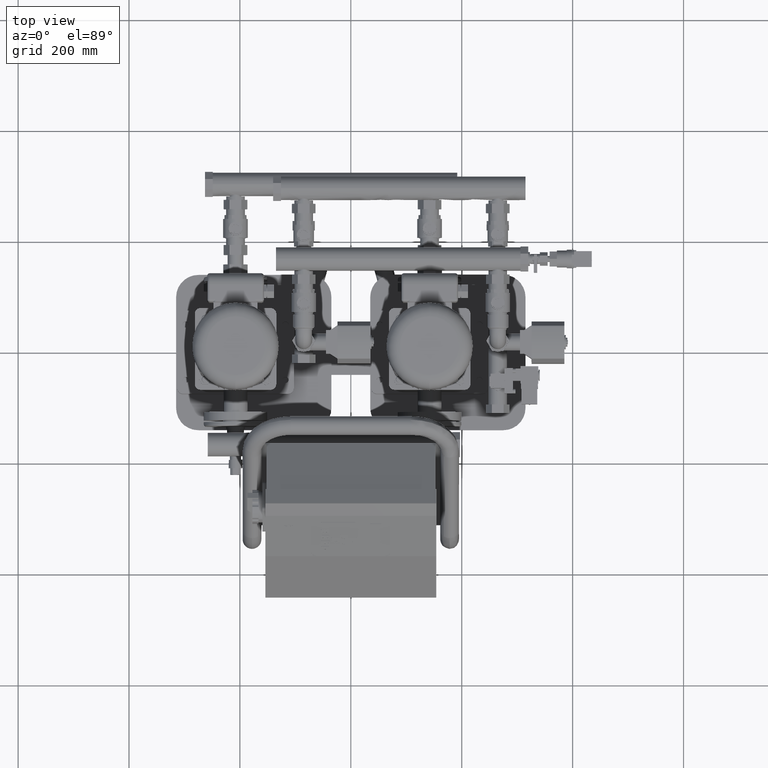
[diagram: clean part render]
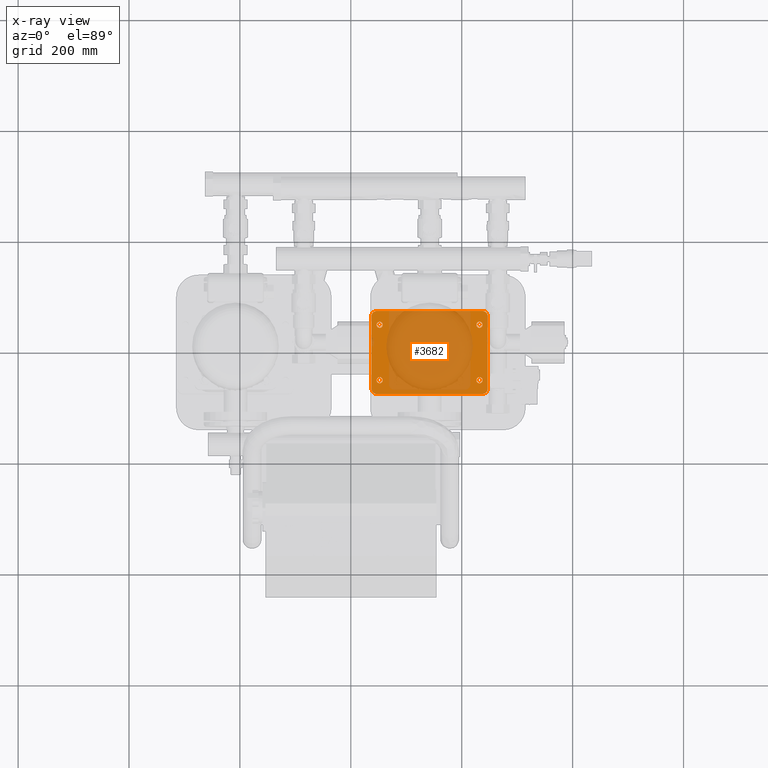
[diagram: x-ray — body ghosted, one internal face saturated and labeled with its STEP entity id]
A machine part, top view, then the same camera in x-ray: the body is ghosted and one INTERNAL B-rep face — a face not visible from any outside direction — is saturated and labeled: STEP entity #3682.
In plain terms, the highlighted planar face has unit normal (0, 0, 1).
Its self-contained STEP definition (entity closure, byte-faithful):
#1558=CARTESIAN_POINT('',(52.000000000000014,55.500000000000014,52.999999999999993));
#1559=VERTEX_POINT('',#1558);
#1568=CARTESIAN_POINT('',(52.000000000000014,44.500000000000014,52.999999999999993));
#1569=VERTEX_POINT('',#1568);
#1570=CARTESIAN_POINT('',(52.000000000000014,50.000000000000014,52.999999999999993));
#1571=DIRECTION('',(0.0,0.0,1.0));
#1572=DIRECTION('',(0.0,1.0,0.0));
#1573=AXIS2_PLACEMENT_3D('',#1570,#1571,#1572);
#1574=CIRCLE('',#1573,5.500000000000000);
#1575=EDGE_CURVE('',#1569,#1559,#1574,.T.);
#1600=CARTESIAN_POINT('',(232.0,55.499999999999993,52.999999999999993));
#1601=VERTEX_POINT('',#1600);
#1610=CARTESIAN_POINT('',(232.0,44.500000000000000,52.999999999999993));
#1611=VERTEX_POINT('',#1610);
#1612=CARTESIAN_POINT('',(232.0,49.999999999999993,52.999999999999993));
#1613=DIRECTION('',(0.0,0.0,1.0));
#1614=DIRECTION('',(0.0,1.0,0.0));
#1615=AXIS2_PLACEMENT_3D('',#1612,#1613,#1614);
#1616=CIRCLE('',#1615,5.500000000000000);
#1617=EDGE_CURVE('',#1611,#1601,#1616,.T.);
#1642=CARTESIAN_POINT('',(232.0,-44.500000000000007,52.999999999999993));
#1643=VERTEX_POINT('',#1642);
#1652=CARTESIAN_POINT('',(232.0,-55.500000000000000,52.999999999999993));
#1653=VERTEX_POINT('',#1652);
#1654=CARTESIAN_POINT('',(232.0,-50.000000000000007,52.999999999999993));
#1655=DIRECTION('',(0.0,0.0,1.0));
#1656=DIRECTION('',(0.0,1.0,0.0));
#1657=AXIS2_PLACEMENT_3D('',#1654,#1655,#1656);
#1658=CIRCLE('',#1657,5.500000000000000);
#1659=EDGE_CURVE('',#1653,#1643,#1658,.T.);
#1684=CARTESIAN_POINT('',(52.0,-44.499999999999986,52.999999999999993));
#1685=VERTEX_POINT('',#1684);
#1694=CARTESIAN_POINT('',(52.0,-55.499999999999986,52.999999999999993));
#1695=VERTEX_POINT('',#1694);
#1696=CARTESIAN_POINT('',(52.0,-49.999999999999986,52.999999999999993));
#1697=DIRECTION('',(0.0,0.0,1.0));
#1698=DIRECTION('',(0.0,1.0,0.0));
#1699=AXIS2_PLACEMENT_3D('',#1696,#1697,#1698);
#1700=CIRCLE('',#1699,5.500000000000000);
#1701=EDGE_CURVE('',#1695,#1685,#1700,.T.);
#3313=CARTESIAN_POINT('',(52.0,-49.999999999999986,52.999999999999993));
#3314=DIRECTION('',(0.0,0.0,1.0));
#3315=DIRECTION('',(0.0,1.0,0.0));
#3316=AXIS2_PLACEMENT_3D('',#3313,#3314,#3315);
#3317=CIRCLE('',#3316,5.500000000000000);
#3318=EDGE_CURVE('',#1685,#1695,#3317,.T.);
#3337=CARTESIAN_POINT('',(232.0,-50.000000000000007,52.999999999999993));
#3338=DIRECTION('',(0.0,0.0,1.0));
#3339=DIRECTION('',(0.0,1.0,0.0));
#3340=AXIS2_PLACEMENT_3D('',#3337,#3338,#3339);
#3341=CIRCLE('',#3340,5.500000000000000);
#3342=EDGE_CURVE('',#1643,#1653,#3341,.T.);
#3361=CARTESIAN_POINT('',(232.0,49.999999999999993,52.999999999999993));
#3362=DIRECTION('',(0.0,0.0,1.0));
#3363=DIRECTION('',(0.0,1.0,0.0));
#3364=AXIS2_PLACEMENT_3D('',#3361,#3362,#3363);
#3365=CIRCLE('',#3364,5.500000000000000);
#3366=EDGE_CURVE('',#1601,#1611,#3365,.T.);
#3385=CARTESIAN_POINT('',(52.000000000000014,50.000000000000014,52.999999999999993));
#3386=DIRECTION('',(0.0,0.0,1.0));
#3387=DIRECTION('',(0.0,1.0,0.0));
#3388=AXIS2_PLACEMENT_3D('',#3385,#3386,#3387);
#3389=CIRCLE('',#3388,5.500000000000000);
#3390=EDGE_CURVE('',#1559,#1569,#3389,.T.);
#3410=CARTESIAN_POINT('',(247.0,-65.0,52.999999999999993));
#3411=VERTEX_POINT('',#3410);
#3418=CARTESIAN_POINT('',(247.0,65.000000000000014,52.999999999999993));
#3419=VERTEX_POINT('',#3418);
#3420=CARTESIAN_POINT('',(247.0,-65.0,52.999999999999993));
#3421=DIRECTION('',(0.0,1.0,0.0));
#3422=VECTOR('',#3421,130.0);
#3423=LINE('',#3420,#3422);
#3424=EDGE_CURVE('',#3411,#3419,#3423,.T.);
#3449=CARTESIAN_POINT('',(237.0,-75.0,52.999999999999993));
#3450=VERTEX_POINT('',#3449);
#3457=CARTESIAN_POINT('',(237.0,-65.0,52.999999999999993));
#3458=DIRECTION('',(0.0,0.0,1.0));
#3459=DIRECTION('',(0.0,-1.0,0.0));
#3460=AXIS2_PLACEMENT_3D('',#3457,#3458,#3459);
#3461=CIRCLE('',#3460,9.999999999999982);
#3462=EDGE_CURVE('',#3450,#3411,#3461,.T.);
#3481=CARTESIAN_POINT('',(47.0,-74.999999999999986,52.999999999999993));
#3482=VERTEX_POINT('',#3481);
#3489=CARTESIAN_POINT('',(47.0,-74.999999999999986,52.999999999999993));
#3490=DIRECTION('',(1.0,0.0,0.0));
#3491=VECTOR('',#3490,190.0);
#3492=LINE('',#3489,#3491);
#3493=EDGE_CURVE('',#3482,#3450,#3492,.T.);
#3513=CARTESIAN_POINT('',(37.0,-64.999999999999986,52.999999999999993));
#3514=VERTEX_POINT('',#3513);
#3521=CARTESIAN_POINT('',(47.0,-64.999999999999986,52.999999999999993));
#3522=DIRECTION('',(0.0,0.0,1.0));
#3523=DIRECTION('',(-1.0,0.0,0.0));
#3524=AXIS2_PLACEMENT_3D('',#3521,#3522,#3523);
#3525=CIRCLE('',#3524,10.0);
#3526=EDGE_CURVE('',#3514,#3482,#3525,.T.);
#3545=CARTESIAN_POINT('',(37.0,65.000000000000014,52.999999999999993));
#3546=VERTEX_POINT('',#3545);
#3553=CARTESIAN_POINT('',(37.0,65.000000000000014,52.999999999999993));
#3554=DIRECTION('',(0.0,-1.0,0.0));
#3555=VECTOR('',#3554,130.0);
#3556=LINE('',#3553,#3555);
#3557=EDGE_CURVE('',#3546,#3514,#3556,.T.);
#3577=CARTESIAN_POINT('',(47.000000000000014,75.000000000000014,52.999999999999993));
#3578=VERTEX_POINT('',#3577);
#3585=CARTESIAN_POINT('',(47.000000000000014,65.000000000000014,52.999999999999993));
#3586=DIRECTION('',(0.0,0.0,1.0));
#3587=DIRECTION('',(0.0,1.0,0.0));
#3588=AXIS2_PLACEMENT_3D('',#3585,#3586,#3587);
#3589=CIRCLE('',#3588,10.000000000000009);
#3590=EDGE_CURVE('',#3578,#3546,#3589,.T.);
#3609=CARTESIAN_POINT('',(237.000000000000060,75.000000000000014,52.999999999999993));
#3610=VERTEX_POINT('',#3609);
#3617=CARTESIAN_POINT('',(237.000000000000060,75.000000000000014,52.999999999999993));
#3618=DIRECTION('',(-1.0,0.0,0.0));
#3619=VECTOR('',#3618,190.000000000000060);
#3620=LINE('',#3617,#3619);
#3621=EDGE_CURVE('',#3610,#3578,#3620,.T.);
#3640=CARTESIAN_POINT('',(237.000000000000060,65.000000000000014,52.999999999999993));
#3641=DIRECTION('',(0.0,0.0,1.0));
#3642=DIRECTION('',(1.0,0.0,0.0));
#3643=AXIS2_PLACEMENT_3D('',#3640,#3641,#3642);
#3644=CIRCLE('',#3643,9.999999999999982);
#3645=EDGE_CURVE('',#3419,#3610,#3644,.T.);
#3651=CARTESIAN_POINT('',(142.0,1.147785E-014,52.999999999999993));
#3652=DIRECTION('',(0.0,0.0,1.0));
#3653=DIRECTION('',(0.0,-1.0,0.0));
#3654=AXIS2_PLACEMENT_3D('',#3651,#3652,#3653);
#3655=PLANE('',#3654);
#3656=ORIENTED_EDGE('',*,*,#3645,.F.);
#3657=ORIENTED_EDGE('',*,*,#3424,.F.);
#3658=ORIENTED_EDGE('',*,*,#3462,.F.);
#3659=ORIENTED_EDGE('',*,*,#3493,.F.);
#3660=ORIENTED_EDGE('',*,*,#3526,.F.);
#3661=ORIENTED_EDGE('',*,*,#3557,.F.);
#3662=ORIENTED_EDGE('',*,*,#3590,.F.);
#3663=ORIENTED_EDGE('',*,*,#3621,.F.);
#3664=EDGE_LOOP('',(#3656,#3657,#3658,#3659,#3660,#3661,#3662,#3663));
#3665=FACE_OUTER_BOUND('',#3664,.T.);
#3666=ORIENTED_EDGE('',*,*,#1701,.T.);
#3667=ORIENTED_EDGE('',*,*,#3318,.T.);
#3668=EDGE_LOOP('',(#3666,#3667));
#3669=FACE_BOUND('',#3668,.T.);
#3670=ORIENTED_EDGE('',*,*,#1659,.T.);
#3671=ORIENTED_EDGE('',*,*,#3342,.T.);
#3672=EDGE_LOOP('',(#3670,#3671));
#3673=FACE_BOUND('',#3672,.T.);
#3674=ORIENTED_EDGE('',*,*,#1617,.T.);
#3675=ORIENTED_EDGE('',*,*,#3366,.T.);
#3676=EDGE_LOOP('',(#3674,#3675));
#3677=FACE_BOUND('',#3676,.T.);
#3678=ORIENTED_EDGE('',*,*,#1575,.T.);
#3679=ORIENTED_EDGE('',*,*,#3390,.T.);
#3680=EDGE_LOOP('',(#3678,#3679));
#3681=FACE_BOUND('',#3680,.T.);
#3682=ADVANCED_FACE('',(#3665,#3669,#3673,#3677,#3681),#3655,.F.);